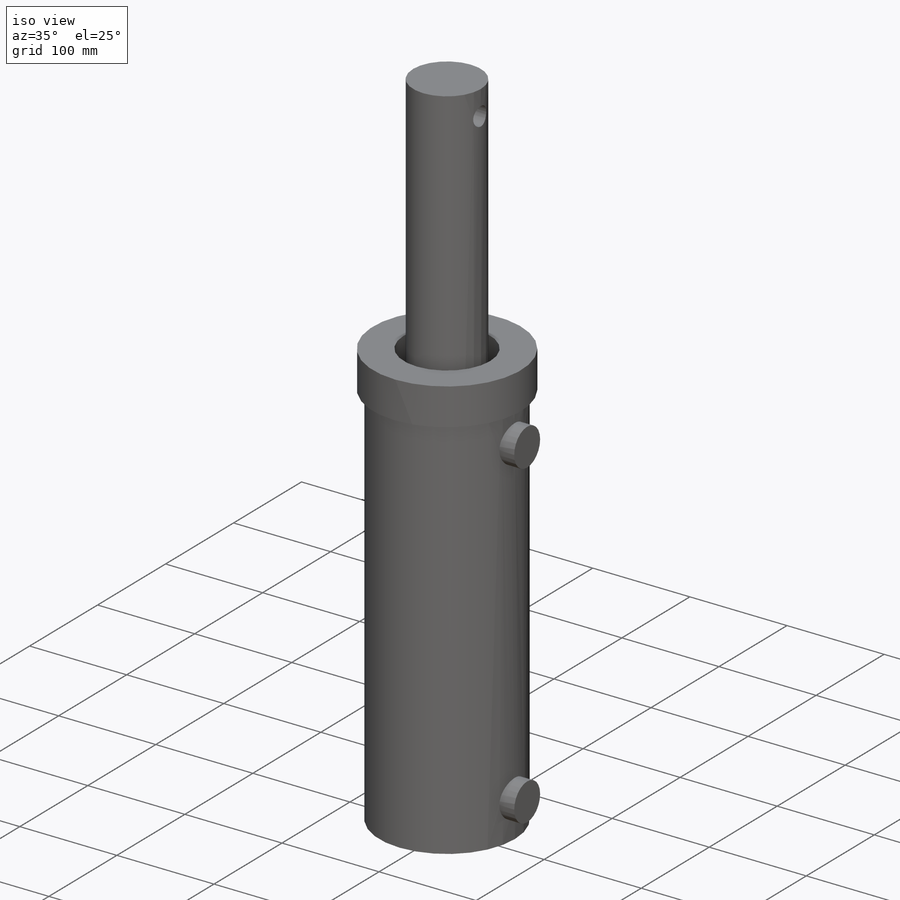
[diagram: iso view]
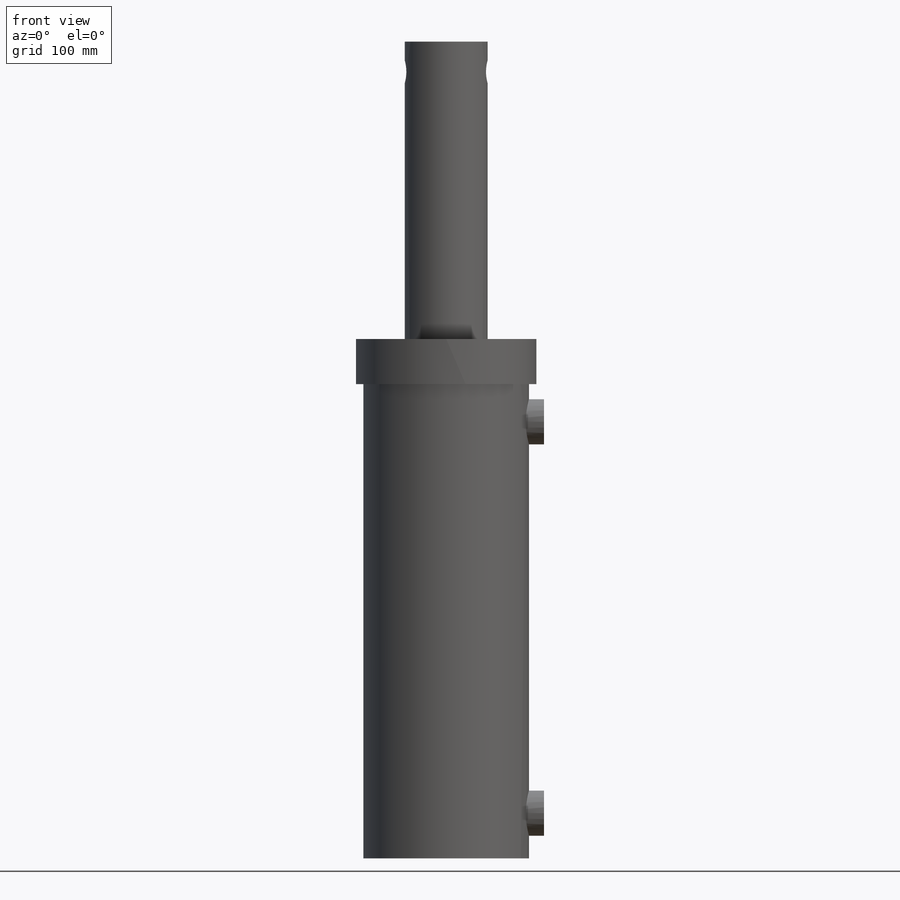
[diagram: front view]
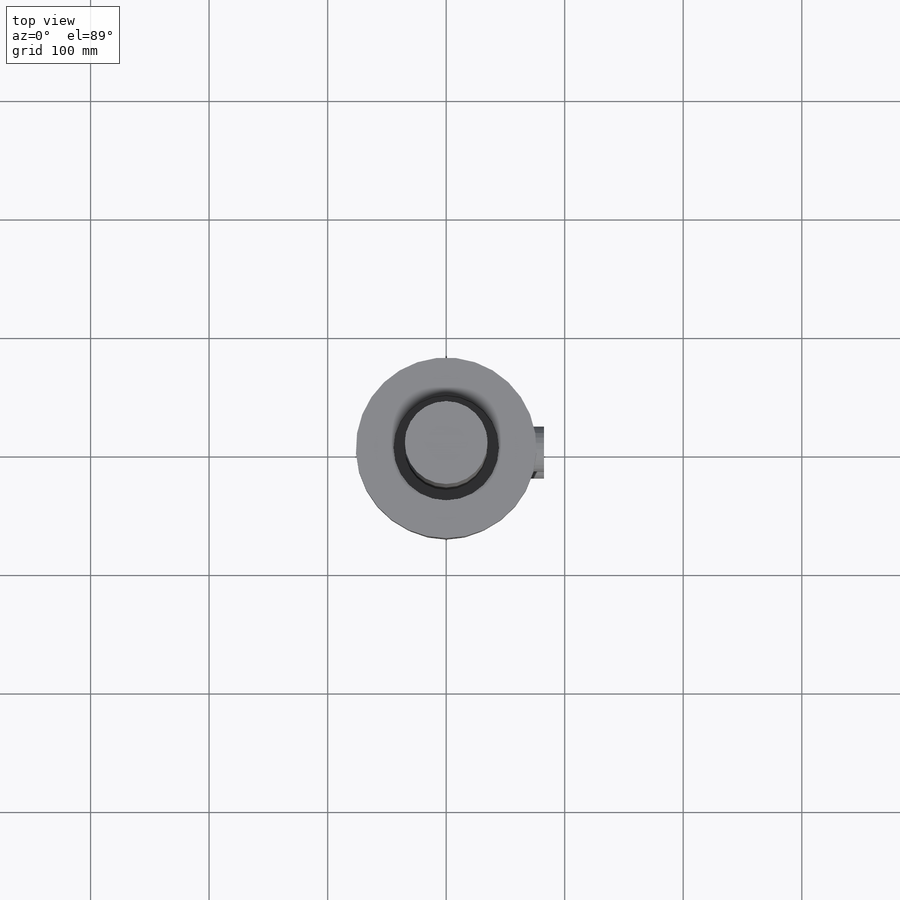
[diagram: top view]
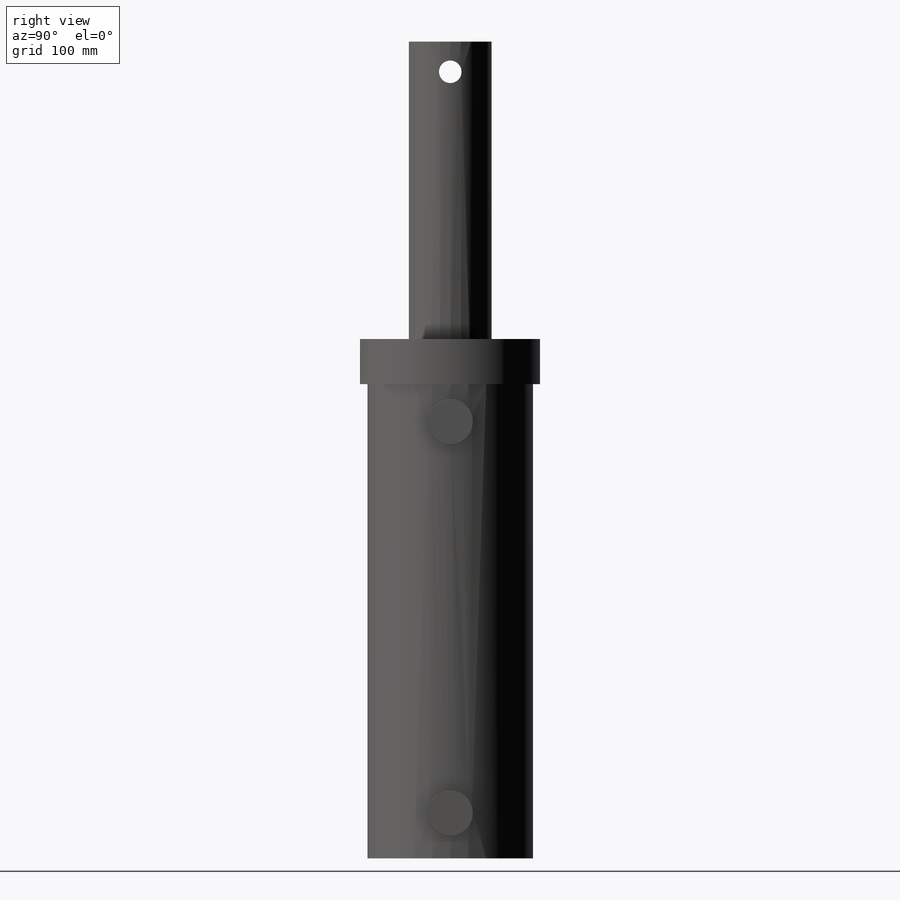
[diagram: right view]
SOLIDWORKS PART (.sldprt)
format: sldprt  version: not decoded by parser v0  size: 233,984 bytes
history: native  units: mm
features: sketch x10, extrude x4, cut_extrude x2, plane x2, material x1 (+11 scaffold rows collapsed)
feature tree (30):
  scaffold x11  (default folders/planes/origin — collapsed)
  material  "Material <not specified>"
  sketch  "Sketch1"  dims[D1=139.7mm]
  extrude  "Boss-Extrude1"  Depth=438.15mm
  sketch  "Sketch2"  dims[c1.D1=~98.702124mm c1.D2=38.481mm c2.D1=31.75mm c2.D3=~6.039448mm c3.D3=~0.624572deg c4.D3=19.05mm]
  sketch  "Sketch3"  dims[D1=25.4mm D2=12.7mm]
  sketch  "Sketch4"  dims[c1.D1=63.5mm c1.D2=38.481mm c1.D4=63.5mm c1.D5=38.481mm c1.D3=584.2mm c1.D6=304.8mm c2.D3=552.45mm c2.D7=52.3875mm c2.D6=304.8mm c3.D7=857.25mm c3.D6=52.3875mm]
  sketch  "Sketch5"  dims[D1=152.4mm]
  extrude  "Boss-Extrude5"  Depth=38.1mm
  sketch  "Sketch6"  dims[D1=~43.038309mm]
  cut_extrude  "Cut-Extrude1"  Depth=38.1mm
  sketch  "Sketch7"  dims[D1=63.5mm]
  plane  "Plane1"
  plane  "Plane2"
  sketch  "Sketch8"  dims[D1=38.1mm D2=38.1mm D3=69.85mm D4=38.1mm]
  extrude  "Boss-Extrude7"  Depth=12.7mm
  sketch  "Sketch9"  dims[D1=69.85mm]
  extrude  "Boss-Extrude8"  Depth=288.925mm
  sketch  "Sketch10"  dims[D1=25.4mm]
  cut_extrude  "Cut-Extrude2"  [1 undecoded]
decode coverage: 15 of 16 modeling features carry decoded parameters
note: ~ marks probable driven/reference dimensions
note: 1 parameter value undecoded
note: suppression state not decoded; provenance and decode notes live in map.json
